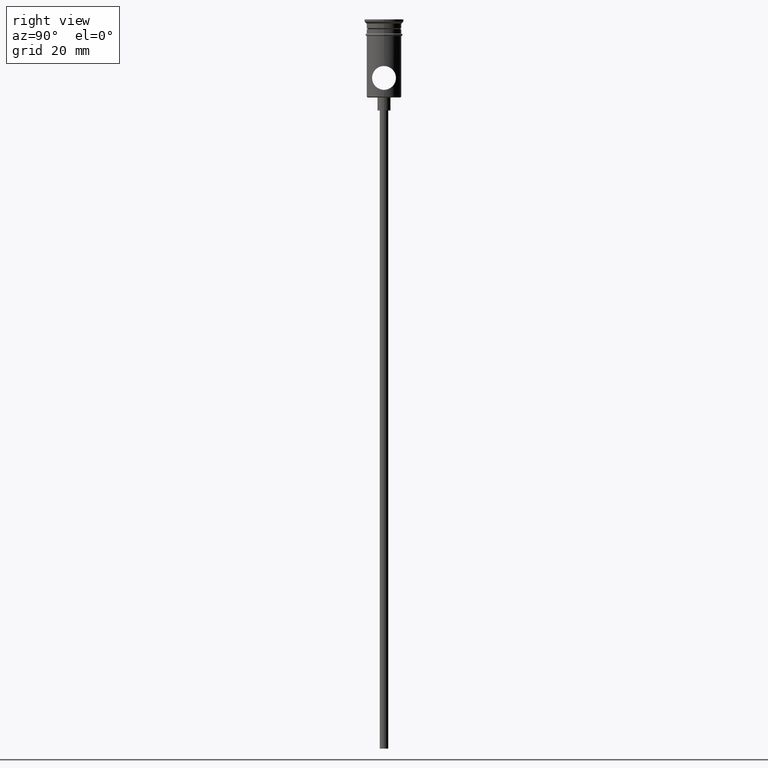
[diagram: clean part render]
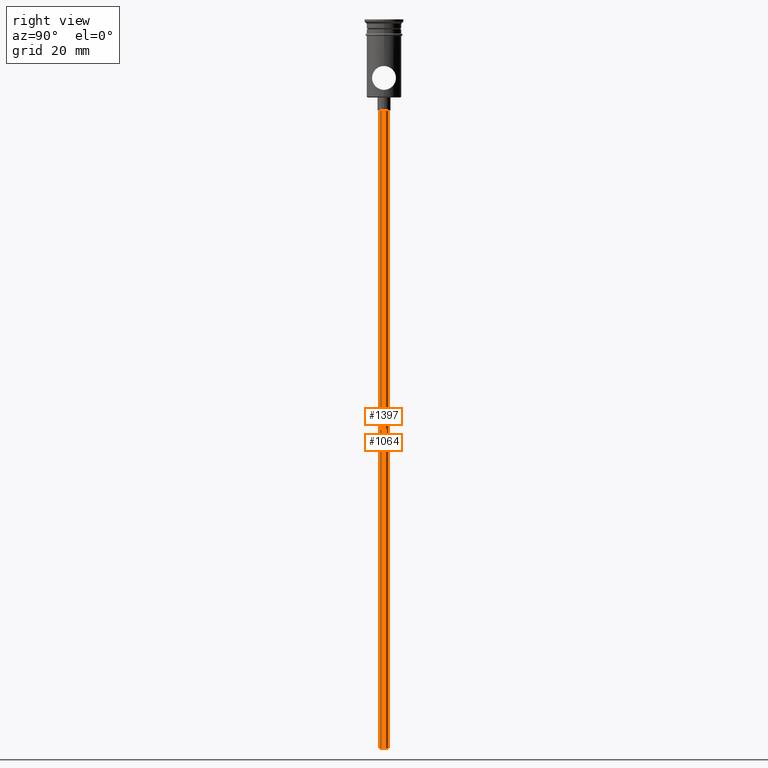
[diagram: same view with one multi-face feature highlighted, each face labeled with its STEP entity id]
A machine part, right view. The highlighted faces form ONE feature: a constant-radius fillet chain: 2 tangent blend faces with common blend radius 1 mm. The faces share edges in the B-rep.
Their STEP definitions:
[1] entity #1397 (Cylinder):
#18 = LINE ( 'NONE', #1323, #954 ) ;
#122 = CIRCLE ( 'NONE', #449, 0.9999999999999997780 ) ;
#166 = CARTESIAN_POINT ( 'NONE',  ( 0.000000000000000000, 0.000000000000000000, -20.99999999999999645 ) ) ;
#168 = DIRECTION ( 'NONE',  ( -0.000000000000000000, -0.000000000000000000, 1.000000000000000000 ) ) ;
#182 = ORIENTED_EDGE ( 'NONE', *, *, #1116, .T. ) ;
#188 = VECTOR ( 'NONE', #168, 1000.000000000000000 ) ;
#207 = DIRECTION ( 'NONE',  ( 1.000000000000000000, 0.000000000000000000, 0.000000000000000000 ) ) ;
#212 = EDGE_LOOP ( 'NONE', ( #372, #1401, #182, #453 ) ) ;
#254 = DIRECTION ( 'NONE',  ( -1.000000000000000000, 0.000000000000000000, 0.000000000000000000 ) ) ;
#372 = ORIENTED_EDGE ( 'NONE', *, *, #386, .F. ) ;
#380 = CARTESIAN_POINT ( 'NONE',  ( 0.000000000000000000, 0.000000000000000000, -167.9999999999999716 ) ) ;
#386 = EDGE_CURVE ( 'NONE', #791, #434, #596, .T. ) ;
#429 = CARTESIAN_POINT ( 'NONE',  ( 0.9999999999999997780, 0.000000000000000000, -20.99999999999999645 ) ) ;
#434 = VERTEX_POINT ( 'NONE', #698 ) ;
#449 = AXIS2_PLACEMENT_3D ( 'NONE', #166, #609, #254 ) ;
#453 = ORIENTED_EDGE ( 'NONE', *, *, #1147, .T. ) ;
#496 = CARTESIAN_POINT ( 'NONE',  ( -0.9999999999999997780, 1.224646799147352961E-16, -167.9999999999999716 ) ) ;
#517 = DIRECTION ( 'NONE',  ( 0.000000000000000000, 0.000000000000000000, -1.000000000000000000 ) ) ;
#596 = LINE ( 'NONE', #496, #188 ) ;
#609 = DIRECTION ( 'NONE',  ( 0.000000000000000000, 0.000000000000000000, -1.000000000000000000 ) ) ;
#639 = VERTEX_POINT ( 'NONE', #694 ) ;
#654 = AXIS2_PLACEMENT_3D ( 'NONE', #756, #666, #207 ) ;
#666 = DIRECTION ( 'NONE',  ( -0.000000000000000000, -0.000000000000000000, 1.000000000000000000 ) ) ;
#670 = DIRECTION ( 'NONE',  ( -0.000000000000000000, -0.000000000000000000, 1.000000000000000000 ) ) ;
#694 = CARTESIAN_POINT ( 'NONE',  ( 0.9999999999999997780, 0.000000000000000000, -167.9999999999999716 ) ) ;
#698 = CARTESIAN_POINT ( 'NONE',  ( -0.9999999999999997780, 1.224646799147352961E-16, -20.99999999999999645 ) ) ;
#756 = CARTESIAN_POINT ( 'NONE',  ( 0.000000000000000000, 0.000000000000000000, -167.9999999999999716 ) ) ;
#779 = EDGE_CURVE ( 'NONE', #639, #791, #1218, .T. ) ;
#791 = VERTEX_POINT ( 'NONE', #1355 ) ;
#887 = CYLINDRICAL_SURFACE ( 'NONE', #654, 0.9999999999999997780 ) ;
#954 = VECTOR ( 'NONE', #670, 1000.000000000000000 ) ;
#980 = AXIS2_PLACEMENT_3D ( 'NONE', #380, #517, #1363 ) ;
#994 = VERTEX_POINT ( 'NONE', #429 ) ;
#1116 = EDGE_CURVE ( 'NONE', #639, #994, #18, .T. ) ;
#1147 = EDGE_CURVE ( 'NONE', #994, #434, #122, .T. ) ;
#1218 = CIRCLE ( 'NONE', #980, 0.9999999999999997780 ) ;
#1304 = FACE_OUTER_BOUND ( 'NONE', #212, .T. ) ;
#1323 = CARTESIAN_POINT ( 'NONE',  ( 0.9999999999999997780, 0.000000000000000000, -167.9999999999999716 ) ) ;
#1355 = CARTESIAN_POINT ( 'NONE',  ( -0.9999999999999997780, 1.224646799147352961E-16, -167.9999999999999716 ) ) ;
#1363 = DIRECTION ( 'NONE',  ( -1.000000000000000000, 0.000000000000000000, 0.000000000000000000 ) ) ;
#1397 = ADVANCED_FACE ( 'NONE', ( #1304 ), #887, .T. ) ;
#1401 = ORIENTED_EDGE ( 'NONE', *, *, #779, .F. ) ;
[2] entity #1064 (Cylinder):
#18 = LINE ( 'NONE', #1323, #954 ) ;
#67 = EDGE_LOOP ( 'NONE', ( #1259, #123, #418, #297 ) ) ;
#98 = AXIS2_PLACEMENT_3D ( 'NONE', #1017, #463, #899 ) ;
#123 = ORIENTED_EDGE ( 'NONE', *, *, #386, .T. ) ;
#157 = EDGE_CURVE ( 'NONE', #434, #994, #1217, .T. ) ;
#168 = DIRECTION ( 'NONE',  ( -0.000000000000000000, -0.000000000000000000, 1.000000000000000000 ) ) ;
#188 = VECTOR ( 'NONE', #168, 1000.000000000000000 ) ;
#194 = FACE_OUTER_BOUND ( 'NONE', #67, .T. ) ;
#198 = DIRECTION ( 'NONE',  ( -0.000000000000000000, -0.000000000000000000, 1.000000000000000000 ) ) ;
#297 = ORIENTED_EDGE ( 'NONE', *, *, #1116, .F. ) ;
#370 = AXIS2_PLACEMENT_3D ( 'NONE', #585, #1019, #799 ) ;
#386 = EDGE_CURVE ( 'NONE', #791, #434, #596, .T. ) ;
#418 = ORIENTED_EDGE ( 'NONE', *, *, #157, .T. ) ;
#429 = CARTESIAN_POINT ( 'NONE',  ( 0.9999999999999997780, 0.000000000000000000, -20.99999999999999645 ) ) ;
#434 = VERTEX_POINT ( 'NONE', #698 ) ;
#463 = DIRECTION ( 'NONE',  ( 0.000000000000000000, 0.000000000000000000, -1.000000000000000000 ) ) ;
#496 = CARTESIAN_POINT ( 'NONE',  ( -0.9999999999999997780, 1.224646799147352961E-16, -167.9999999999999716 ) ) ;
#585 = CARTESIAN_POINT ( 'NONE',  ( 0.000000000000000000, 0.000000000000000000, -167.9999999999999716 ) ) ;
#596 = LINE ( 'NONE', #496, #188 ) ;
#635 = EDGE_CURVE ( 'NONE', #791, #639, #1379, .T. ) ;
#637 = DIRECTION ( 'NONE',  ( 1.000000000000000000, 0.000000000000000000, 0.000000000000000000 ) ) ;
#639 = VERTEX_POINT ( 'NONE', #694 ) ;
#670 = DIRECTION ( 'NONE',  ( -0.000000000000000000, -0.000000000000000000, 1.000000000000000000 ) ) ;
#694 = CARTESIAN_POINT ( 'NONE',  ( 0.9999999999999997780, 0.000000000000000000, -167.9999999999999716 ) ) ;
#698 = CARTESIAN_POINT ( 'NONE',  ( -0.9999999999999997780, 1.224646799147352961E-16, -20.99999999999999645 ) ) ;
#791 = VERTEX_POINT ( 'NONE', #1355 ) ;
#799 = DIRECTION ( 'NONE',  ( -1.000000000000000000, 0.000000000000000000, 0.000000000000000000 ) ) ;
#899 = DIRECTION ( 'NONE',  ( -1.000000000000000000, 0.000000000000000000, 0.000000000000000000 ) ) ;
#954 = VECTOR ( 'NONE', #670, 1000.000000000000000 ) ;
#994 = VERTEX_POINT ( 'NONE', #429 ) ;
#1017 = CARTESIAN_POINT ( 'NONE',  ( 0.000000000000000000, 0.000000000000000000, -20.99999999999999645 ) ) ;
#1019 = DIRECTION ( 'NONE',  ( 0.000000000000000000, 0.000000000000000000, -1.000000000000000000 ) ) ;
#1064 = ADVANCED_FACE ( 'NONE', ( #194 ), #1089, .T. ) ;
#1089 = CYLINDRICAL_SURFACE ( 'NONE', #1408, 0.9999999999999997780 ) ;
#1116 = EDGE_CURVE ( 'NONE', #639, #994, #18, .T. ) ;
#1217 = CIRCLE ( 'NONE', #98, 0.9999999999999997780 ) ;
#1259 = ORIENTED_EDGE ( 'NONE', *, *, #635, .F. ) ;
#1285 = CARTESIAN_POINT ( 'NONE',  ( 0.000000000000000000, 0.000000000000000000, -167.9999999999999716 ) ) ;
#1323 = CARTESIAN_POINT ( 'NONE',  ( 0.9999999999999997780, 0.000000000000000000, -167.9999999999999716 ) ) ;
#1355 = CARTESIAN_POINT ( 'NONE',  ( -0.9999999999999997780, 1.224646799147352961E-16, -167.9999999999999716 ) ) ;
#1379 = CIRCLE ( 'NONE', #370, 0.9999999999999997780 ) ;
#1408 = AXIS2_PLACEMENT_3D ( 'NONE', #1285, #198, #637 ) ;